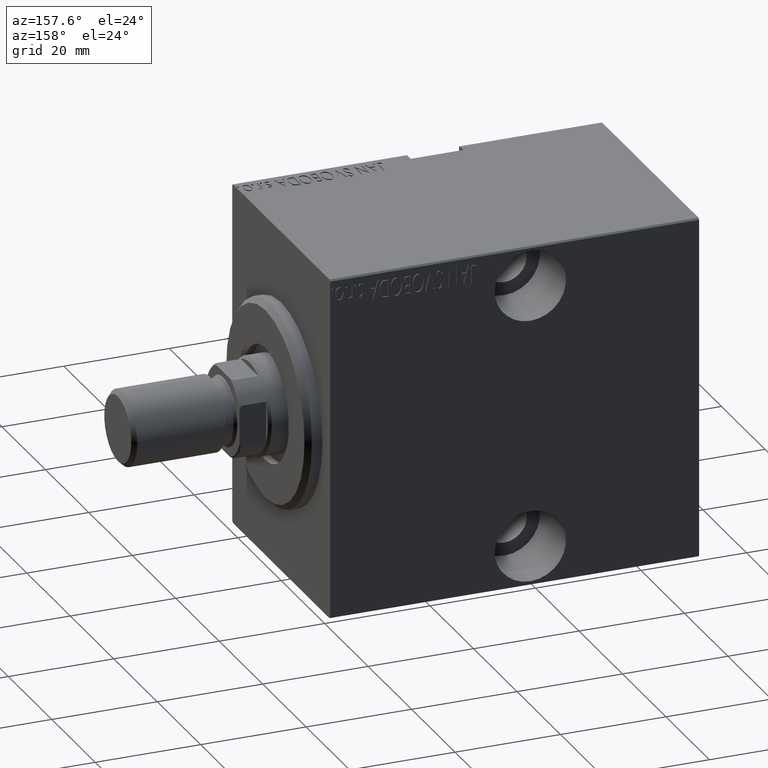
[diagram: clean part render]
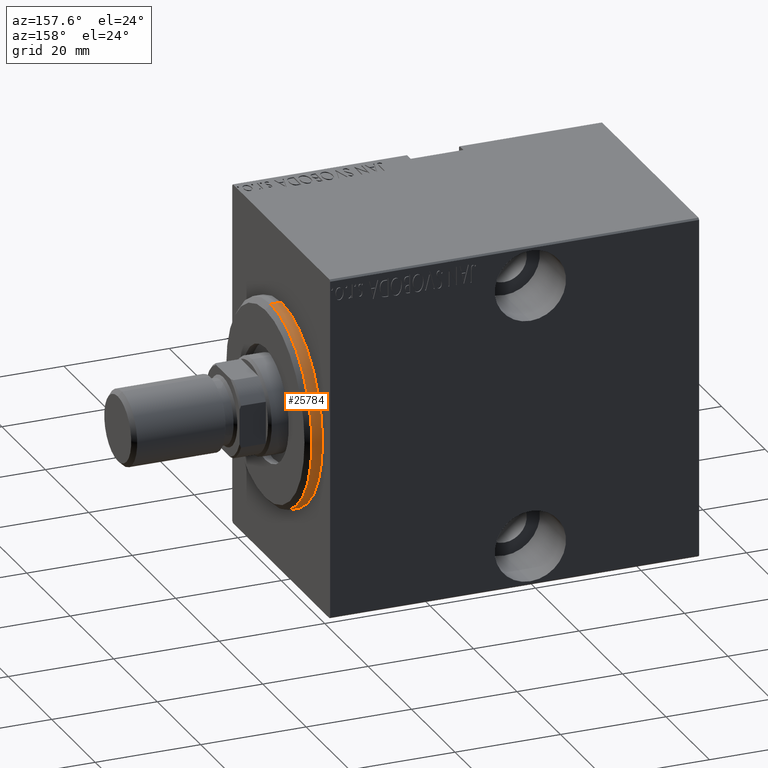
[diagram: same view with one face highlighted and labeled with its STEP entity id]
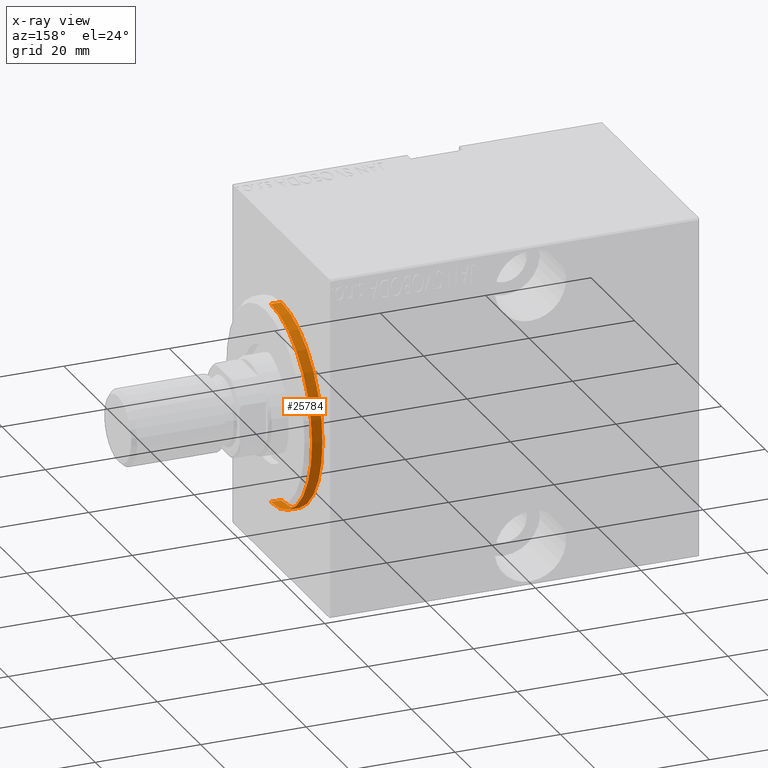
[diagram: x-ray of the same camera — body ghosted, the highlighted face saturated]
A machine part, auxiliary view. The second image highlights one B-rep face of the part: STEP entity #25784.
The next image is the same camera in x-ray: the body ghosted, the highlighted face saturated — about 0% of this face is hidden behind the body in this view.
In plain terms, the highlighted cylindrical surface (partial cylindrical patch) has radius 19 mm, axis along (-1, -0, -0).
Its self-contained STEP definition (entity closure, byte-faithful):
#2443 = CIRCLE ( 'NONE', #26073, 19.00000000000000000 ) ;
#4708 = LINE ( 'NONE', #34293, #12666 ) ;
#6447 = ORIENTED_EDGE ( 'NONE', *, *, #22424, .T. ) ;
#7258 = DIRECTION ( 'NONE',  ( 0.000000000000000000, 0.000000000000000000, -1.000000000000000000 ) ) ;
#8477 = CARTESIAN_POINT ( 'NONE',  ( 1.999999999999992228, 2.326828918379970970E-15, -19.00000000000000000 ) ) ;
#8698 = CARTESIAN_POINT ( 'NONE',  ( 3.000000000000000000, 0.000000000000000000, 0.000000000000000000 ) ) ;
#9233 = EDGE_CURVE ( 'NONE', #42389, #28695, #4708, .T. ) ;
#10773 = VECTOR ( 'NONE', #17000, 1000.000000000000000 ) ;
#11534 = DIRECTION ( 'NONE',  ( -1.000000000000000000, -0.000000000000000000, -0.000000000000000000 ) ) ;
#12650 = CARTESIAN_POINT ( 'NONE',  ( 1.999999999999992228, 0.000000000000000000, 0.000000000000000000 ) ) ;
#12666 = VECTOR ( 'NONE', #18630, 1000.000000000000000 ) ;
#13210 = CIRCLE ( 'NONE', #31972, 19.00000000000000000 ) ;
#13525 = ORIENTED_EDGE ( 'NONE', *, *, #21760, .F. ) ;
#17000 = DIRECTION ( 'NONE',  ( -1.000000000000000000, -0.000000000000000000, -0.000000000000000000 ) ) ;
#17043 = VERTEX_POINT ( 'NONE', #34418 ) ;
#18630 = DIRECTION ( 'NONE',  ( -1.000000000000000000, -0.000000000000000000, -0.000000000000000000 ) ) ;
#21700 = ORIENTED_EDGE ( 'NONE', *, *, #9233, .T. ) ;
#21760 = EDGE_CURVE ( 'NONE', #41706, #17043, #33309, .T. ) ;
#21974 = FACE_OUTER_BOUND ( 'NONE', #38087, .T. ) ;
#22424 = EDGE_CURVE ( 'NONE', #28695, #17043, #2443, .T. ) ;
#23066 = DIRECTION ( 'NONE',  ( 0.000000000000000000, 0.000000000000000000, -1.000000000000000000 ) ) ;
#23433 = CARTESIAN_POINT ( 'NONE',  ( 0.000000000000000000, 2.326828918379970970E-15, -19.00000000000000000 ) ) ;
#25784 = ADVANCED_FACE ( 'NONE', ( #21974 ), #41338, .T. ) ;
#26073 = AXIS2_PLACEMENT_3D ( 'NONE', #36631, #30524, #7258 ) ;
#28695 = VERTEX_POINT ( 'NONE', #23433 ) ;
#29831 = CARTESIAN_POINT ( 'NONE',  ( 3.000000000000000000, 0.000000000000000000, 19.00000000000000000 ) ) ;
#30524 = DIRECTION ( 'NONE',  ( 1.000000000000000000, -0.000000000000000000, 0.000000000000000000 ) ) ;
#31972 = AXIS2_PLACEMENT_3D ( 'NONE', #12650, #32227, #23066 ) ;
#32227 = DIRECTION ( 'NONE',  ( -1.000000000000000000, 0.000000000000000000, 0.000000000000000000 ) ) ;
#32324 = ORIENTED_EDGE ( 'NONE', *, *, #41204, .T. ) ;
#33309 = LINE ( 'NONE', #29831, #10773 ) ;
#33443 = CARTESIAN_POINT ( 'NONE',  ( 1.999999999999992228, 0.000000000000000000, 19.00000000000000000 ) ) ;
#33787 = AXIS2_PLACEMENT_3D ( 'NONE', #8698, #11534, #34811 ) ;
#34293 = CARTESIAN_POINT ( 'NONE',  ( 3.000000000000000000, 2.326828918379970970E-15, -19.00000000000000000 ) ) ;
#34418 = CARTESIAN_POINT ( 'NONE',  ( 0.000000000000000000, 0.000000000000000000, 19.00000000000000000 ) ) ;
#34811 = DIRECTION ( 'NONE',  ( 0.000000000000000000, 0.000000000000000000, 1.000000000000000000 ) ) ;
#36631 = CARTESIAN_POINT ( 'NONE',  ( 0.000000000000000000, 0.000000000000000000, 0.000000000000000000 ) ) ;
#38087 = EDGE_LOOP ( 'NONE', ( #32324, #21700, #6447, #13525 ) ) ;
#41204 = EDGE_CURVE ( 'NONE', #41706, #42389, #13210, .T. ) ;
#41338 = CYLINDRICAL_SURFACE ( 'NONE', #33787, 19.00000000000000000 ) ;
#41706 = VERTEX_POINT ( 'NONE', #33443 ) ;
#42389 = VERTEX_POINT ( 'NONE', #8477 ) ;